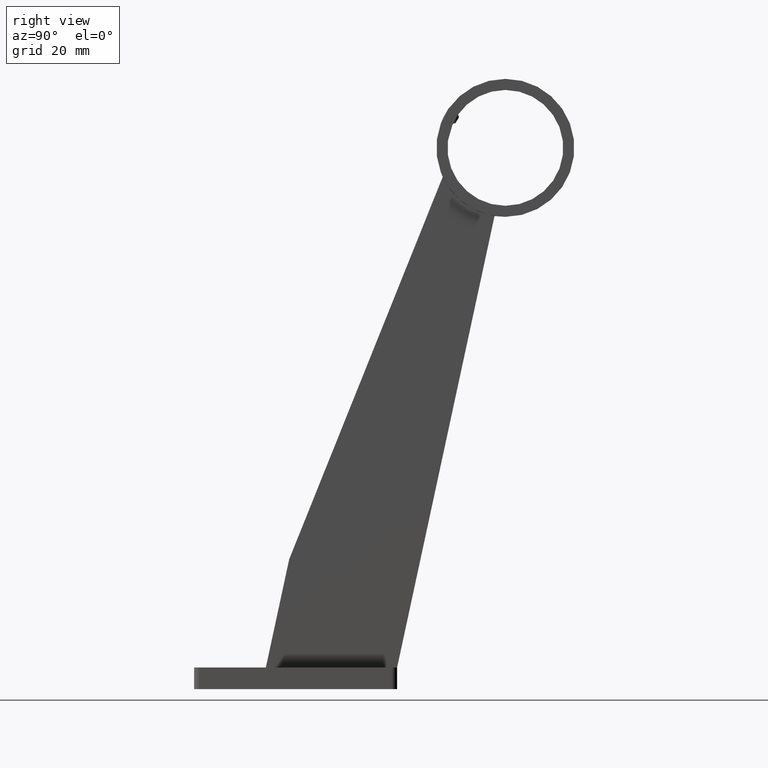
[diagram: clean part render]
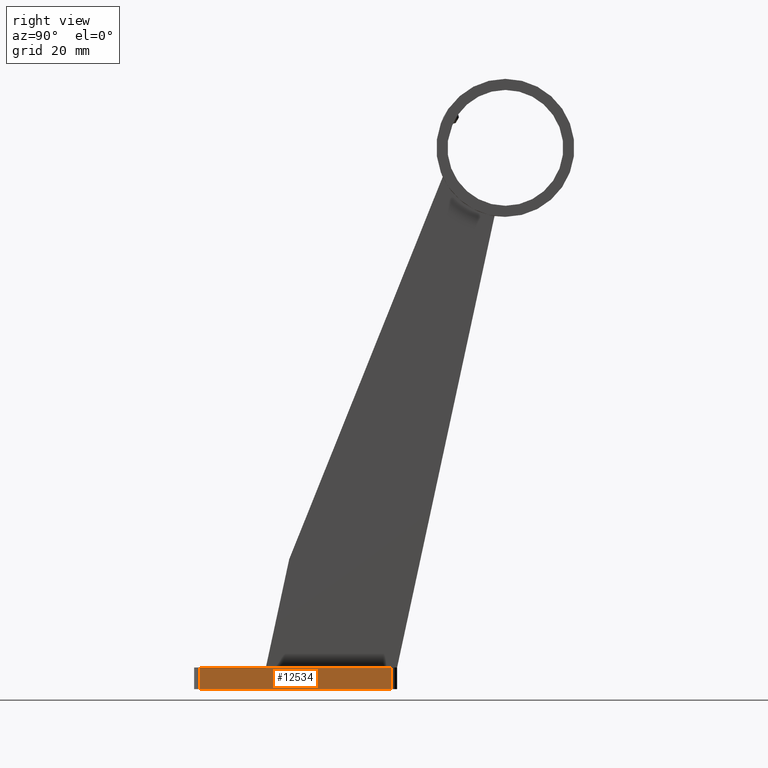
[diagram: same view with one face highlighted and labeled with its STEP entity id]
A machine part, right view. The second image highlights one B-rep face of the part: STEP entity #12534.
In plain terms, the highlighted planar face has unit normal (-1, -0, 0).
Its self-contained STEP definition (entity closure, byte-faithful):
#482 = DIRECTION ( 'NONE',  ( 4.625929269271485791E-17, -1.000000000000000000, 0.000000000000000000 ) ) ;
#951 = CARTESIAN_POINT ( 'NONE',  ( 25.00000000000000000, 37.50000000000000000, 0.000000000000000000 ) ) ;
#1113 = EDGE_LOOP ( 'NONE', ( #10117, #3760, #6742, #14647 ) ) ;
#1590 = CARTESIAN_POINT ( 'NONE',  ( 25.00000000000000000, 37.50000000000000000, 8.000000000000000000 ) ) ;
#1703 = VECTOR ( 'NONE', #10306, 1000.000000000000000 ) ;
#2224 = VECTOR ( 'NONE', #9117, 1000.000000000000000 ) ;
#2695 = DIRECTION ( 'NONE',  ( 0.000000000000000000, 0.000000000000000000, -1.000000000000000000 ) ) ;
#3377 = CARTESIAN_POINT ( 'NONE',  ( 25.00000000000000000, 37.50000000000000000, 8.000000000000000000 ) ) ;
#3531 = LINE ( 'NONE', #13690, #1703 ) ;
#3760 = ORIENTED_EDGE ( 'NONE', *, *, #10042, .T. ) ;
#4003 = PLANE ( 'NONE',  #9826 ) ;
#4919 = EDGE_CURVE ( 'NONE', #8541, #11774, #13102, .T. ) ;
#5819 = LINE ( 'NONE', #3377, #2224 ) ;
#5874 = CARTESIAN_POINT ( 'NONE',  ( 25.00000000000000355, -35.50000000000000000, 8.000000000000000000 ) ) ;
#6742 = ORIENTED_EDGE ( 'NONE', *, *, #4919, .T. ) ;
#6775 = LINE ( 'NONE', #5874, #10554 ) ;
#6938 = VERTEX_POINT ( 'NONE', #14159 ) ;
#7278 = FACE_OUTER_BOUND ( 'NONE', #1113, .T. ) ;
#7357 = CARTESIAN_POINT ( 'NONE',  ( 25.00000000000000355, -35.50000000000000000, 0.000000000000000000 ) ) ;
#7362 = DIRECTION ( 'NONE',  ( -1.000000000000000000, -4.625929269271485791E-17, 0.000000000000000000 ) ) ;
#7859 = DIRECTION ( 'NONE',  ( -4.625929269271485791E-17, 1.000000000000000000, -0.000000000000000000 ) ) ;
#8111 = CARTESIAN_POINT ( 'NONE',  ( 25.00000000000000000, 35.50000000000000000, 0.000000000000000000 ) ) ;
#8541 = VERTEX_POINT ( 'NONE', #7357 ) ;
#9117 = DIRECTION ( 'NONE',  ( -4.625929269271485791E-17, 1.000000000000000000, -0.000000000000000000 ) ) ;
#9826 = AXIS2_PLACEMENT_3D ( 'NONE', #1590, #7362, #482 ) ;
#10042 = EDGE_CURVE ( 'NONE', #12307, #8541, #6775, .T. ) ;
#10117 = ORIENTED_EDGE ( 'NONE', *, *, #14510, .F. ) ;
#10306 = DIRECTION ( 'NONE',  ( -0.000000000000000000, -0.000000000000000000, 1.000000000000000000 ) ) ;
#10554 = VECTOR ( 'NONE', #2695, 1000.000000000000000 ) ;
#11774 = VERTEX_POINT ( 'NONE', #8111 ) ;
#12235 = EDGE_CURVE ( 'NONE', #11774, #6938, #3531, .T. ) ;
#12307 = VERTEX_POINT ( 'NONE', #14821 ) ;
#12391 = VECTOR ( 'NONE', #7859, 1000.000000000000000 ) ;
#12534 = ADVANCED_FACE ( 'NONE', ( #7278 ), #4003, .F. ) ;
#13102 = LINE ( 'NONE', #951, #12391 ) ;
#13690 = CARTESIAN_POINT ( 'NONE',  ( 25.00000000000000000, 35.50000000000000000, 8.000000000000000000 ) ) ;
#14159 = CARTESIAN_POINT ( 'NONE',  ( 25.00000000000000000, 35.50000000000000000, 8.000000000000000000 ) ) ;
#14510 = EDGE_CURVE ( 'NONE', #12307, #6938, #5819, .T. ) ;
#14647 = ORIENTED_EDGE ( 'NONE', *, *, #12235, .T. ) ;
#14821 = CARTESIAN_POINT ( 'NONE',  ( 25.00000000000000355, -35.50000000000000000, 8.000000000000000000 ) ) ;